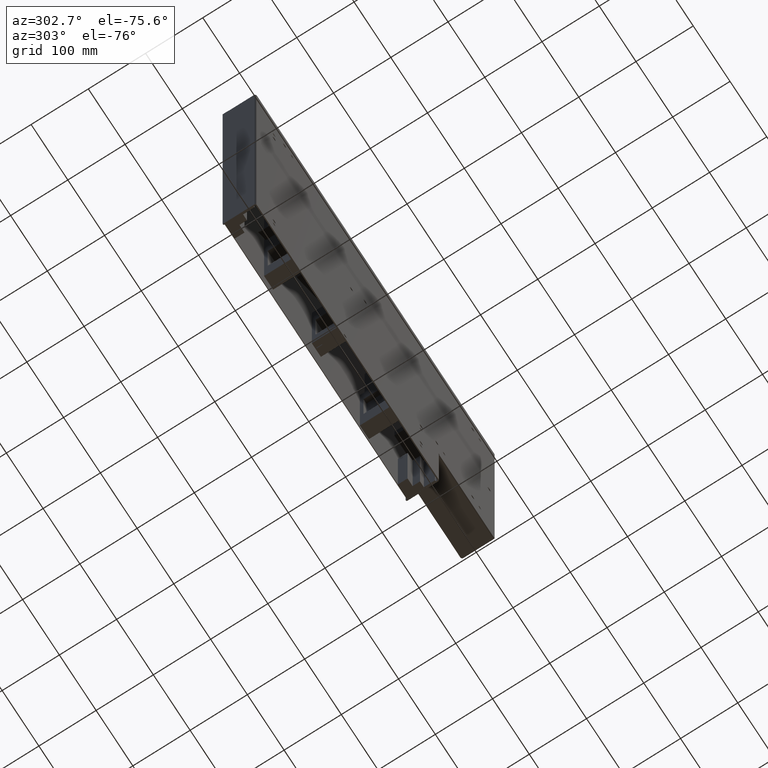
[diagram: clean part render]
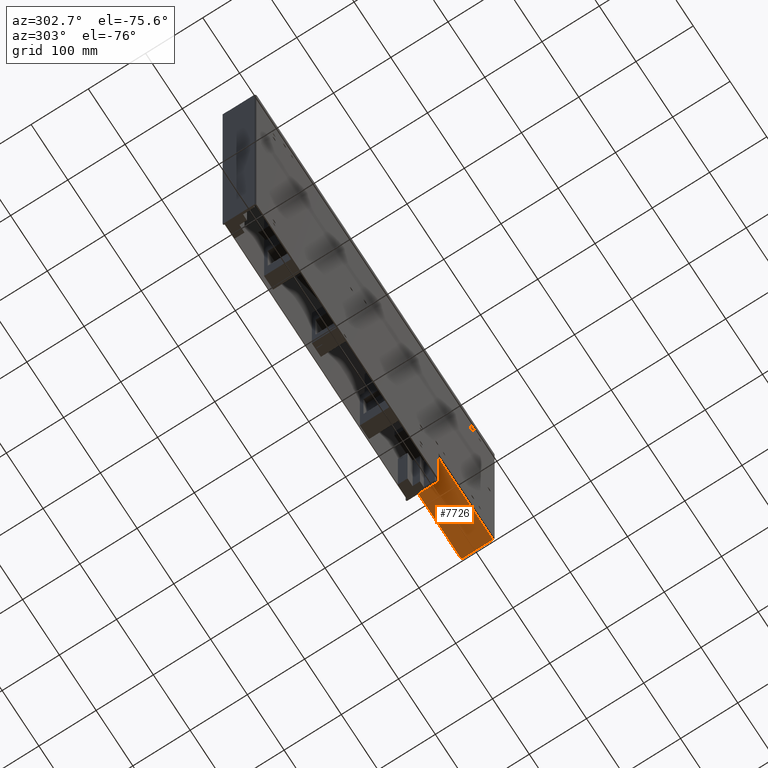
[diagram: same view with one face highlighted and labeled with its STEP entity id]
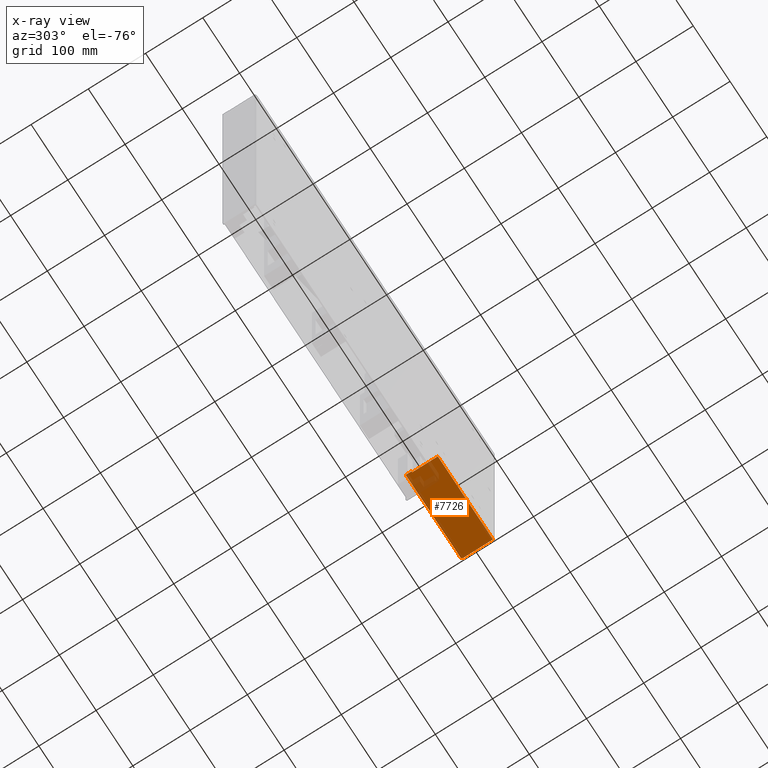
[diagram: x-ray of the same camera — body ghosted, the highlighted face saturated]
A machine part, auxiliary view. The second image highlights one B-rep face of the part: STEP entity #7726.
The next image is the same camera in x-ray: the body ghosted, the highlighted face saturated — about 10% of this face is hidden behind the body in this view.
In plain terms, the highlighted planar face has unit normal (0, 0, 1).
Its self-contained STEP definition (entity closure, byte-faithful):
#5833=DIRECTION('',(0.E0,1.E0,0.E0));
#5834=VECTOR('',#5833,1.E1);
#5835=CARTESIAN_POINT('',(-2.5E2,4.8E1,1.518E2));
#5836=LINE('',#5835,#5834);
#5840=DIRECTION('',(0.E0,0.E0,1.E0));
#5841=VECTOR('',#5840,1.8E0);
#5842=CARTESIAN_POINT('',(-2.5E2,4.8E1,1.5E2));
#5843=LINE('',#5842,#5841);
#5847=DIRECTION('',(0.E0,1.E0,0.E0));
#5848=VECTOR('',#5847,4.5E1);
#5849=CARTESIAN_POINT('',(-2.5E2,3.E0,1.5E2));
#5850=LINE('',#5849,#5848);
#5854=DIRECTION('',(0.E0,0.E0,1.E0));
#5855=VECTOR('',#5854,1.5E2);
#5856=CARTESIAN_POINT('',(-2.5E2,3.E0,0.E0));
#5857=LINE('',#5856,#5855);
#5861=DIRECTION('',(1.004859173558E-14,7.071067811866E-1,7.071067811865E-1));
#5862=VECTOR('',#5861,2.828427124746E0);
#5863=CARTESIAN_POINT('',(-2.5E2,5.6E1,0.E0));
#5864=LINE('',#5863,#5862);
#5875=DIRECTION('',(0.E0,0.E0,-1.E0));
#5876=VECTOR('',#5875,1.498E2);
#5877=CARTESIAN_POINT('',(-2.5E2,5.8E1,1.518E2));
#5878=LINE('',#5877,#5876);
#5903=DIRECTION('',(0.E0,1.E0,0.E0));
#5904=VECTOR('',#5903,5.3E1);
#5905=CARTESIAN_POINT('',(-2.5E2,3.E0,0.E0));
#5906=LINE('',#5905,#5904);
#6869=CARTESIAN_POINT('',(-2.5E2,5.6E1,0.E0));
#6870=CARTESIAN_POINT('',(-2.5E2,5.8E1,2.E0));
#6871=VERTEX_POINT('',#6869);
#6872=VERTEX_POINT('',#6870);
#6877=CARTESIAN_POINT('',(-2.5E2,3.E0,0.E0));
#6878=VERTEX_POINT('',#6877);
#7057=CARTESIAN_POINT('',(-2.5E2,3.E0,1.5E2));
#7058=VERTEX_POINT('',#7057);
#7093=CARTESIAN_POINT('',(-2.5E2,4.8E1,1.5E2));
#7094=CARTESIAN_POINT('',(-2.5E2,4.8E1,1.518E2));
#7095=VERTEX_POINT('',#7093);
#7096=VERTEX_POINT('',#7094);
#7097=CARTESIAN_POINT('',(-2.5E2,5.8E1,1.518E2));
#7098=VERTEX_POINT('',#7097);
#7708=CARTESIAN_POINT('',(-2.5E2,3.E0,0.E0));
#7709=DIRECTION('',(1.E0,0.E0,0.E0));
#7710=DIRECTION('',(0.E0,1.E0,0.E0));
#7711=AXIS2_PLACEMENT_3D('',#7708,#7709,#7710);
#7712=PLANE('',#7711);
#7714=ORIENTED_EDGE('',*,*,#7713,.F.);
#7716=ORIENTED_EDGE('',*,*,#7715,.F.);
#7717=ORIENTED_EDGE('',*,*,#7699,.F.);
#7718=ORIENTED_EDGE('',*,*,#7689,.F.);
#7719=ORIENTED_EDGE('',*,*,#7627,.F.);
#7721=ORIENTED_EDGE('',*,*,#7720,.T.);
#7723=ORIENTED_EDGE('',*,*,#7722,.T.);
#7724=EDGE_LOOP('',(#7714,#7716,#7717,#7718,#7719,#7721,#7723));
#7725=FACE_OUTER_BOUND('',#7724,.F.);
#7627=EDGE_CURVE('',#6878,#7058,#5857,.T.);
#7689=EDGE_CURVE('',#7058,#7095,#5850,.T.);
#7699=EDGE_CURVE('',#7095,#7096,#5843,.T.);
#7713=EDGE_CURVE('',#7098,#6872,#5878,.T.);
#7715=EDGE_CURVE('',#7096,#7098,#5836,.T.);
#7720=EDGE_CURVE('',#6878,#6871,#5906,.T.);
#7722=EDGE_CURVE('',#6871,#6872,#5864,.T.);
#7726=ADVANCED_FACE('',(#7725),#7712,.F.);